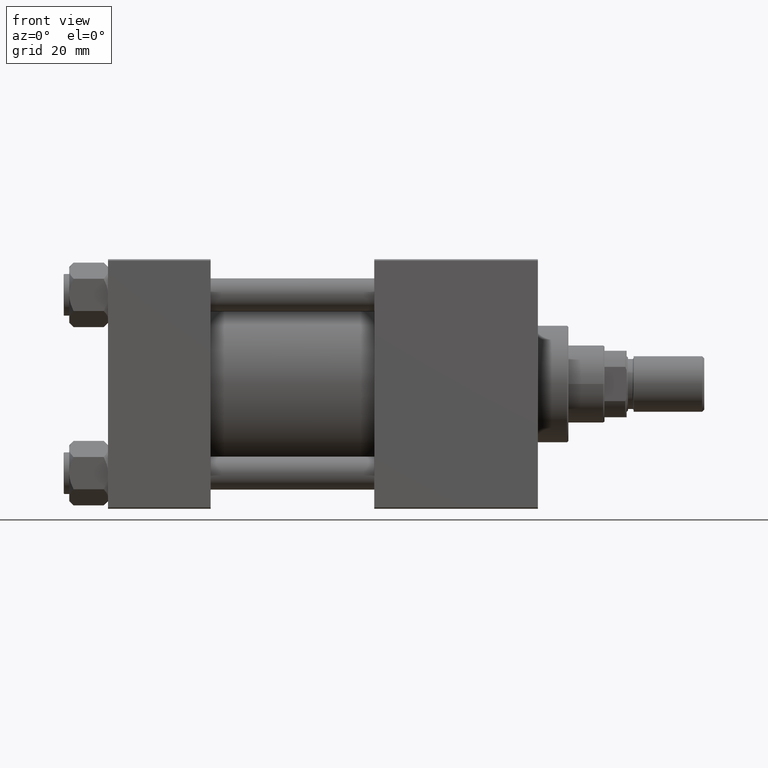
[diagram: clean part render]
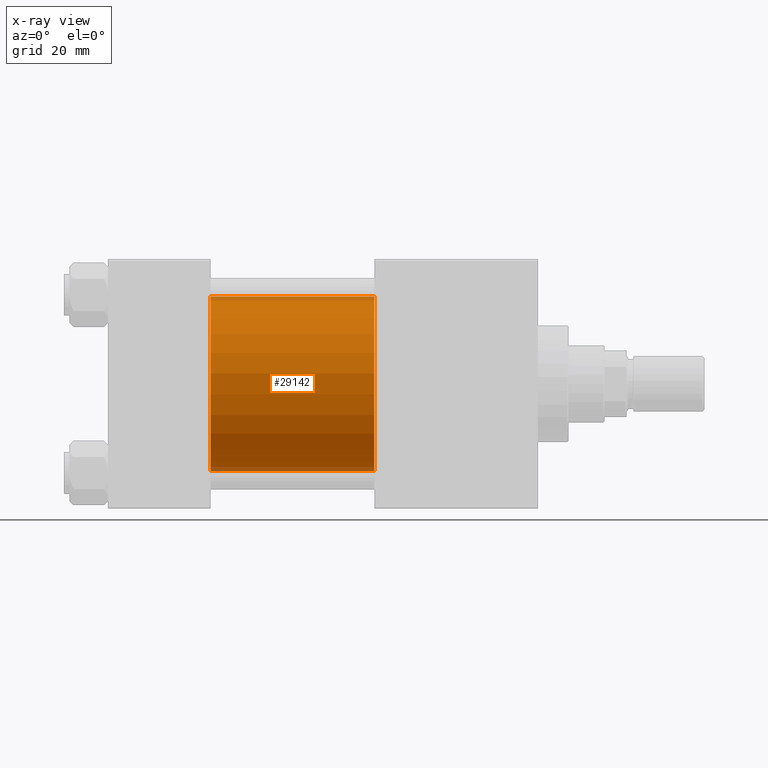
[diagram: x-ray — body ghosted, one internal face saturated and labeled with its STEP entity id]
A machine part, front view, then the same camera in x-ray: the body is ghosted and one INTERNAL B-rep face — a face not visible from any outside direction — is saturated and labeled: STEP entity #29142.
In plain terms, the highlighted cylindrical surface (partial cylindrical patch) has radius 31.5 mm, axis along (-1, -0, -0).
Its self-contained STEP definition (entity closure, byte-faithful):
#247 = CIRCLE ( 'NONE', #40466, 31.50000000000000000 ) ;
#4168 = EDGE_CURVE ( 'NONE', #4477, #24751, #247, .T. ) ;
#4477 = VERTEX_POINT ( 'NONE', #42027 ) ;
#7694 = DIRECTION ( 'NONE',  ( 0.000000000000000000, 0.000000000000000000, 1.000000000000000000 ) ) ;
#10239 = DIRECTION ( 'NONE',  ( 1.000000000000000000, 0.000000000000000000, 0.000000000000000000 ) ) ;
#10507 = CARTESIAN_POINT ( 'NONE',  ( 96.00000000000000000, 1.255552203348951850E-15, -31.50000000000000000 ) ) ;
#10517 = EDGE_LOOP ( 'NONE', ( #28683, #31131, #40449, #22509 ) ) ;
#16755 = LINE ( 'NONE', #28578, #49774 ) ;
#17188 = CARTESIAN_POINT ( 'NONE',  ( 37.00000000000000000, -2.602085213965210642E-15, 0.000000000000000000 ) ) ;
#18750 = CYLINDRICAL_SURFACE ( 'NONE', #49366, 31.50000000000000000 ) ;
#19087 = CARTESIAN_POINT ( 'NONE',  ( 96.00000000000000000, -2.602085213965210642E-15, 31.50000000000000000 ) ) ;
#20658 = AXIS2_PLACEMENT_3D ( 'NONE', #29734, #45418, #40541 ) ;
#22056 = DIRECTION ( 'NONE',  ( 0.000000000000000000, 0.000000000000000000, -1.000000000000000000 ) ) ;
#22304 = CIRCLE ( 'NONE', #20658, 31.50000000000000000 ) ;
#22350 = FACE_OUTER_BOUND ( 'NONE', #10517, .T. ) ;
#22490 = VERTEX_POINT ( 'NONE', #19087 ) ;
#22509 = ORIENTED_EDGE ( 'NONE', *, *, #44859, .F. ) ;
#24751 = VERTEX_POINT ( 'NONE', #32874 ) ;
#26186 = DIRECTION ( 'NONE',  ( -1.000000000000000000, -0.000000000000000000, -0.000000000000000000 ) ) ;
#26973 = DIRECTION ( 'NONE',  ( -1.000000000000000000, -0.000000000000000000, -0.000000000000000000 ) ) ;
#28578 = CARTESIAN_POINT ( 'NONE',  ( 96.00000000000000000, -2.602085213965210642E-15, 31.50000000000000000 ) ) ;
#28683 = ORIENTED_EDGE ( 'NONE', *, *, #29489, .T. ) ;
#29142 = ADVANCED_FACE ( 'NONE', ( #22350 ), #18750, .F. ) ;
#29489 = EDGE_CURVE ( 'NONE', #22490, #44102, #22304, .T. ) ;
#29734 = CARTESIAN_POINT ( 'NONE',  ( 96.00000000000000000, -2.602085213965210642E-15, 0.000000000000000000 ) ) ;
#31131 = ORIENTED_EDGE ( 'NONE', *, *, #45430, .T. ) ;
#31460 = CARTESIAN_POINT ( 'NONE',  ( 96.00000000000000000, 1.255552203348951850E-15, -31.50000000000000000 ) ) ;
#32874 = CARTESIAN_POINT ( 'NONE',  ( 37.00000000000000000, 1.255552203348951850E-15, -31.50000000000000000 ) ) ;
#40449 = ORIENTED_EDGE ( 'NONE', *, *, #4168, .F. ) ;
#40466 = AXIS2_PLACEMENT_3D ( 'NONE', #17188, #10239, #22056 ) ;
#40541 = DIRECTION ( 'NONE',  ( 0.000000000000000000, 0.000000000000000000, -1.000000000000000000 ) ) ;
#41397 = DIRECTION ( 'NONE',  ( -1.000000000000000000, -0.000000000000000000, -0.000000000000000000 ) ) ;
#42027 = CARTESIAN_POINT ( 'NONE',  ( 37.00000000000000000, -2.602085213965210642E-15, 31.50000000000000000 ) ) ;
#44102 = VERTEX_POINT ( 'NONE', #31460 ) ;
#44859 = EDGE_CURVE ( 'NONE', #22490, #4477, #16755, .T. ) ;
#44860 = VECTOR ( 'NONE', #26186, 1000.000000000000000 ) ;
#45418 = DIRECTION ( 'NONE',  ( 1.000000000000000000, 0.000000000000000000, 0.000000000000000000 ) ) ;
#45430 = EDGE_CURVE ( 'NONE', #44102, #24751, #45713, .T. ) ;
#45713 = LINE ( 'NONE', #10507, #44860 ) ;
#46492 = CARTESIAN_POINT ( 'NONE',  ( 96.00000000000000000, -2.602085213965210642E-15, 0.000000000000000000 ) ) ;
#49366 = AXIS2_PLACEMENT_3D ( 'NONE', #46492, #26973, #7694 ) ;
#49774 = VECTOR ( 'NONE', #41397, 1000.000000000000000 ) ;